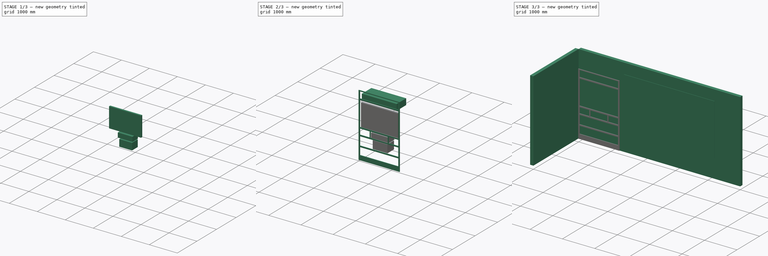
[diagram: build sequence overview — one tinted view per stage of 3, left to right]
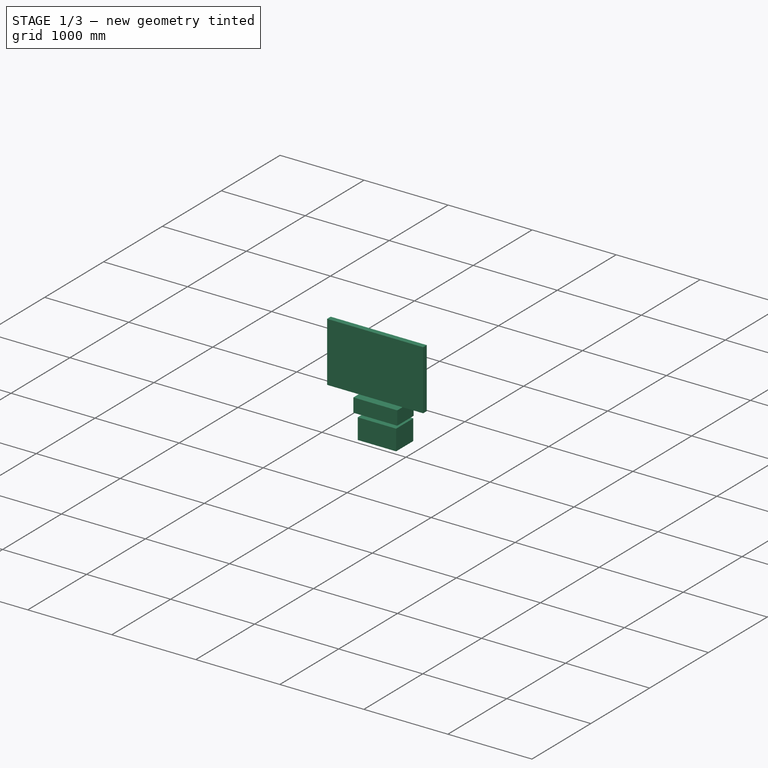
[diagram: stage 1 of 3 — iso view after this stage's code; geometry added in this stage tinted green]
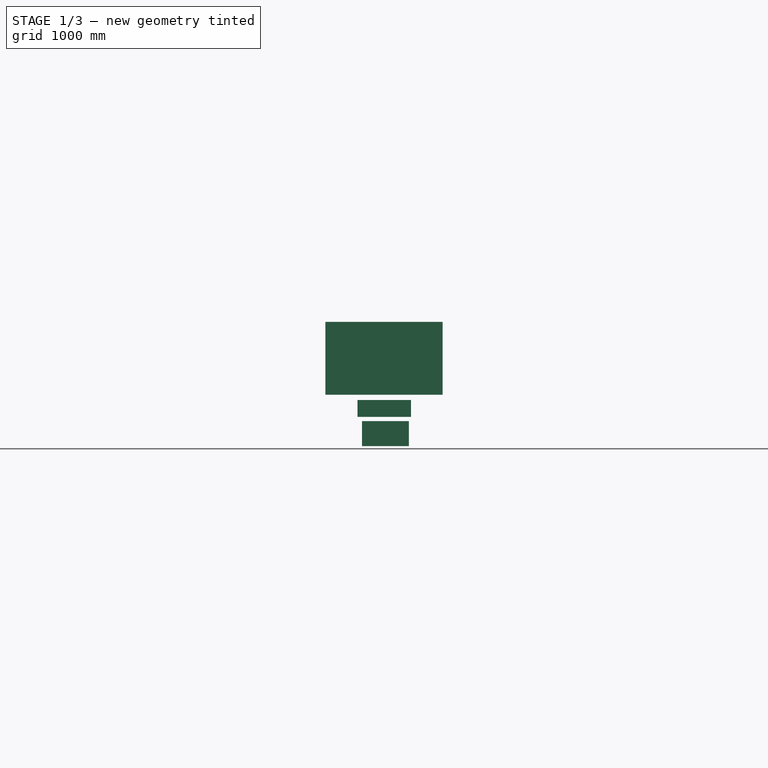
[diagram: stage 1 of 3 — front view after this stage's code; geometry added in this stage tinted green]
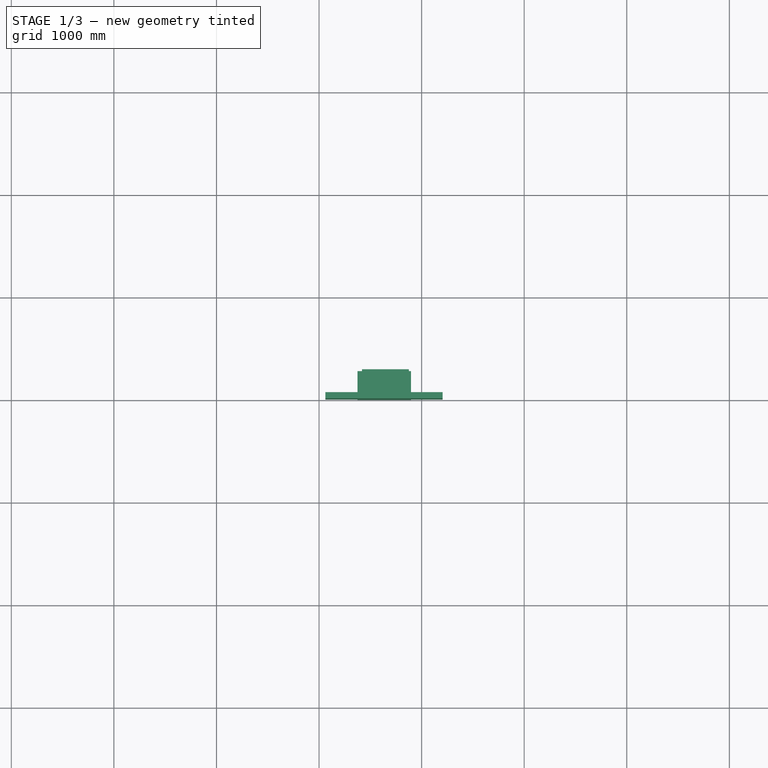
[diagram: stage 1 of 3 — top view after this stage's code; geometry added in this stage tinted green]
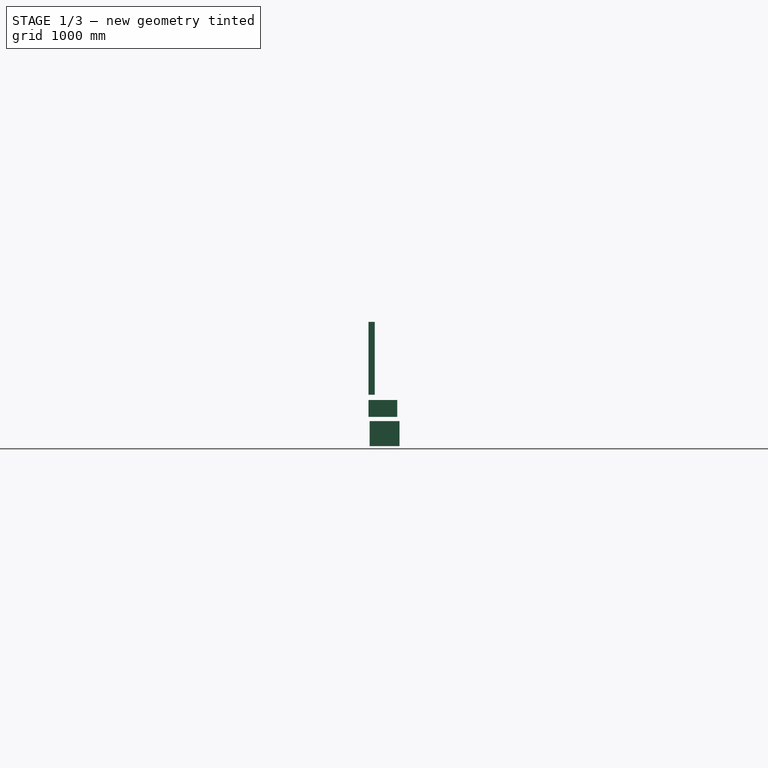
[diagram: stage 1 of 3 — right view after this stage's code; geometry added in this stage tinted green]
FCSTD DOCUMENT  (FreeCAD 0.14R3677 (Git))
Label: stereo stand
License: CC-BY 3.0
LicenseURL: http://creativecommons.org/licenses/by/3.0/
objects: Part::Box×6, Sketcher::SketchObject×2, PartDesign::Pad×1, Part::FeaturePython×1, App::DocumentObjectGroup×1, App::MeasureDistance×1
note: 12 computed .brp shape members not serialized (recipe doc carries the construction recipe); baked Part::Feature solids carry a one-line shape summary decoded from their .brp

FEATURE [Part::Box] Box001  label="tv"
  Height = 710.184
  Length = 1143
  Placement = pos=(61.69,0,906.21) rot=(0,0,1;0rad)
  Width = 60.8
FEATURE [Part::Box] Box002  label="speaker-center"
  Height = 165.1
  Length = 521.208
  Placement = pos=(374.75,0,689.77) rot=(0,0,1;0rad)
  Width = 279.4
FEATURE [Part::Box] Box003  label="radio"
  Height = 243.84
  Length = 457.2
  Placement = pos=(419,10,405) rot=(0,0,1;0rad)
  Width = 291.4
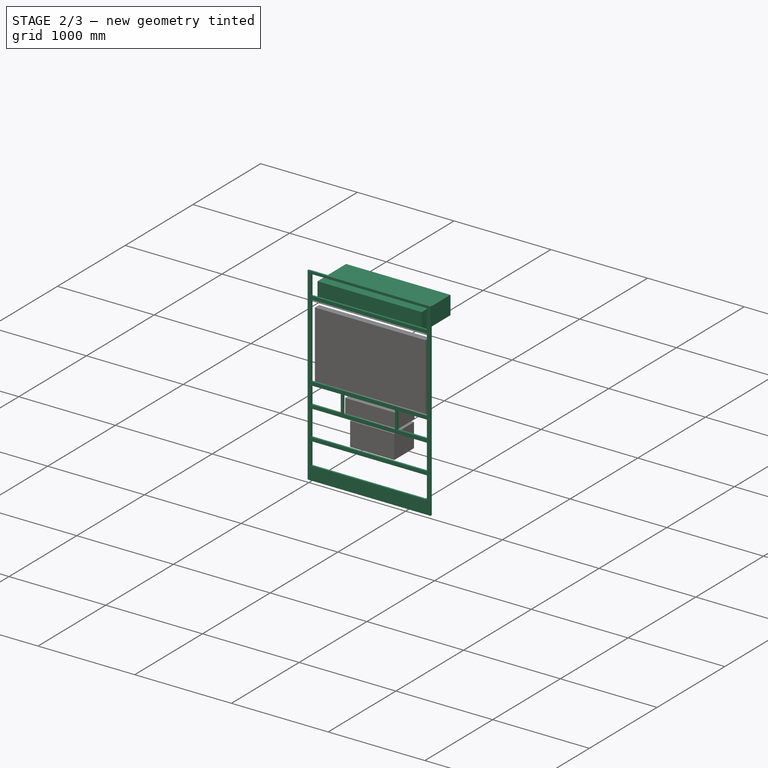
[diagram: stage 2 of 3 — iso view after this stage's code; geometry added in this stage tinted green]
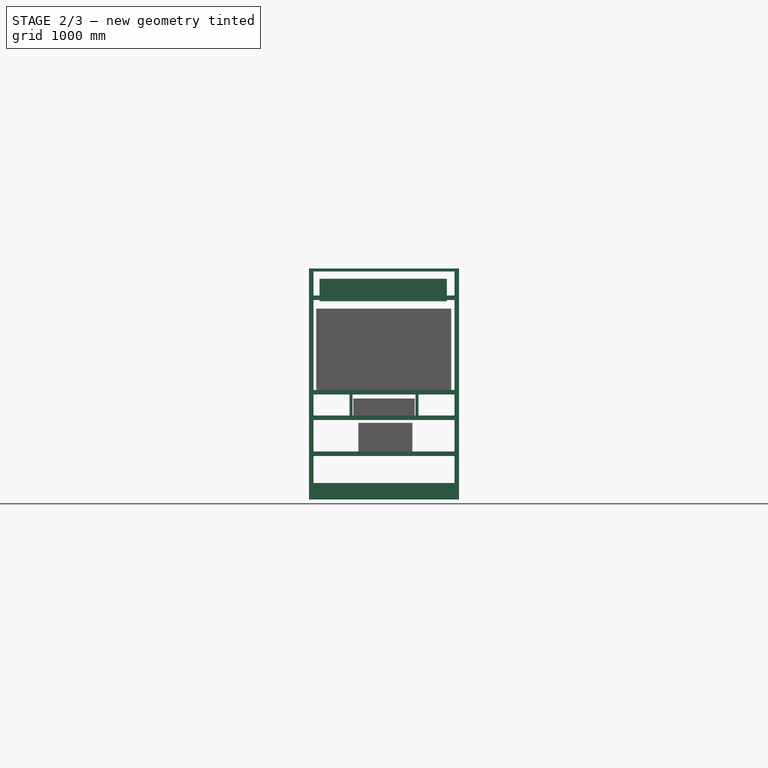
[diagram: stage 2 of 3 — front view after this stage's code; geometry added in this stage tinted green]
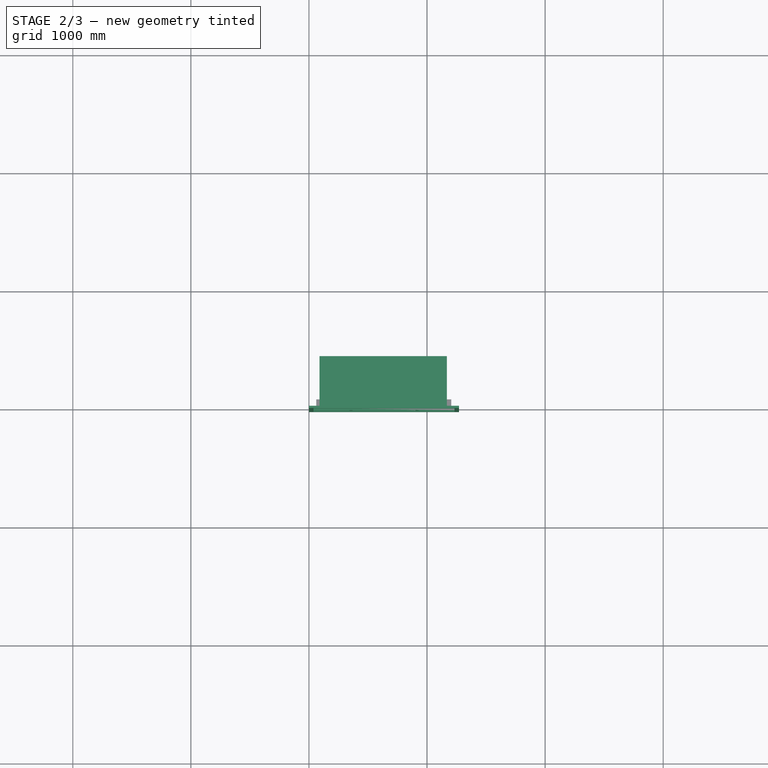
[diagram: stage 2 of 3 — top view after this stage's code; geometry added in this stage tinted green]
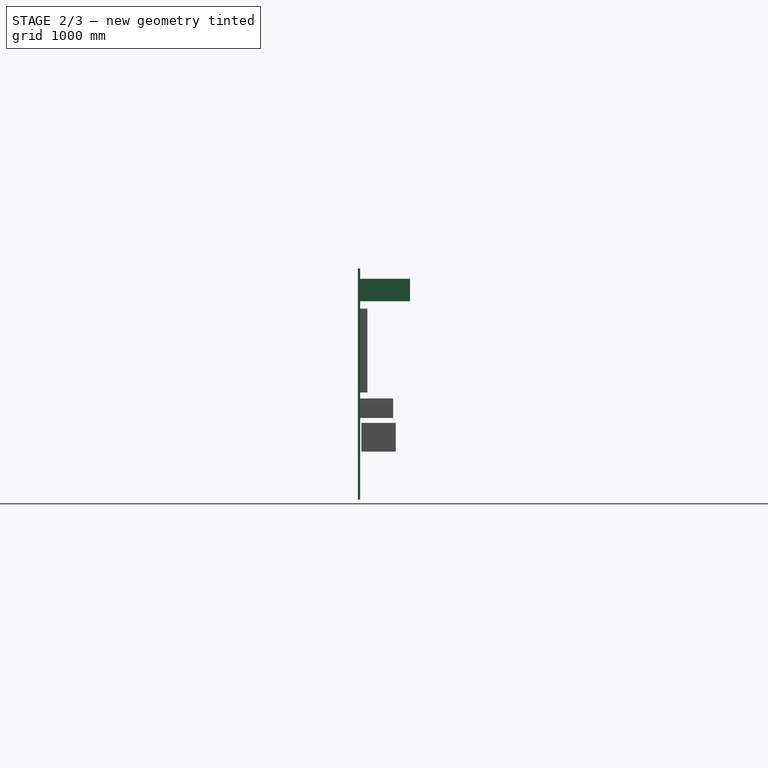
[diagram: stage 2 of 3 — right view after this stage's code; geometry added in this stage tinted green]
FEATURE [Sketcher::SketchObject] Sketch
  Placement = pos=(0,0,0) rot=(1,0,0;1.5708rad)
  sketch-geometry (34):
    g0: LineSegment StartX=0 StartY=0 StartZ=0 EndX=1271.02 EndY=0 EndZ=0
    g1: LineSegment StartX=1271.02 StartY=0 StartZ=0 EndX=1271.02 EndY=1955.8 EndZ=0
    g2: LineSegment StartX=1271.02 StartY=1955.8 StartZ=0 EndX=0 EndY=1955.8 EndZ=0
    g3: LineSegment StartX=0 StartY=1955.8 StartZ=0 EndX=0 EndY=0 EndZ=0
    g4: LineSegment StartX=38.1 StartY=368.3 StartZ=0 EndX=1232.92 EndY=368.3 EndZ=0
    g5: LineSegment StartX=1232.92 StartY=368.3 StartZ=0 EndX=1232.92 EndY=139.7 EndZ=0
    g6: LineSegment StartX=1232.92 StartY=139.7 StartZ=0 EndX=38.1 EndY=139.7 EndZ=0
    g7: LineSegment StartX=38.1 StartY=139.7 StartZ=0 EndX=38.1 EndY=368.3 EndZ=0
    g8: LineSegment StartX=38.1 StartY=673.1 StartZ=0 EndX=1232.92 EndY=673.1 EndZ=0
    g9: LineSegment StartX=1232.92 StartY=673.1 StartZ=0 EndX=1232.92 EndY=406.4 EndZ=0
    g10: LineSegment StartX=1232.92 StartY=406.4 StartZ=0 EndX=38.1 EndY=406.4 EndZ=0
    g11: LineSegment StartX=38.1 StartY=406.4 StartZ=0 EndX=38.1 EndY=673.1 EndZ=0
    g12: LineSegment StartX=38.1 StartY=889 StartZ=0 EndX=343.408 EndY=889 EndZ=0
    g13: LineSegment StartX=1232.92 StartY=889 StartZ=0 EndX=1232.92 EndY=711.2 EndZ=0
    g14: LineSegment StartX=1232.92 StartY=711.2 StartZ=0 EndX=927.608 EndY=711.2 EndZ=0
    g15: LineSegment StartX=38.1 StartY=711.2 StartZ=0 EndX=38.1 EndY=889 EndZ=0
    g16: LineSegment StartX=38.1 StartY=1689.1 StartZ=0 EndX=1232.92 EndY=1689.1 EndZ=0
    g17: LineSegment StartX=1232.92 StartY=1689.1 StartZ=0 EndX=1232.92 EndY=927.1 EndZ=0
    g18: LineSegment StartX=1232.92 StartY=927.1 StartZ=0 EndX=38.1 EndY=927.1 EndZ=0
    g19: LineSegment StartX=38.1 StartY=927.1 StartZ=0 EndX=38.1 EndY=1689.1 EndZ=0
    g20: LineSegment StartX=38.1 StartY=1930.4 StartZ=0 EndX=1232.92 EndY=1930.4 EndZ=0
    g21: LineSegment StartX=1232.92 StartY=1930.4 StartZ=0 EndX=1232.92 EndY=1727.2 EndZ=0
    g22: LineSegment StartX=1232.92 StartY=1727.2 StartZ=0 EndX=38.1 EndY=1727.2 EndZ=0
    g23: LineSegment StartX=38.1 StartY=1727.2 StartZ=0 EndX=38.1 EndY=1930.4 EndZ=0
    g24: LineSegment [constr] StartX=1232.92 StartY=1869.11 StartZ=0 EndX=1232.92 EndY=51.325 EndZ=0
    g25: LineSegment [constr] StartX=38.1 StartY=1892.17 StartZ=0 EndX=38.1 EndY=-203.2 EndZ=0
    g26: LineSegment StartX=368.808 StartY=889 StartZ=0 EndX=368.808 EndY=711.2 EndZ=0
    g27: LineSegment StartX=368.808 StartY=889 StartZ=0 EndX=902.208 EndY=889 EndZ=0
    g28: LineSegment StartX=902.208 StartY=889 StartZ=0 EndX=902.208 EndY=711.2 EndZ=0
    g29: LineSegment StartX=927.608 StartY=889 StartZ=0 EndX=927.608 EndY=711.2 EndZ=0
    g30: LineSegment StartX=927.608 StartY=889 StartZ=0 EndX=1232.92 EndY=889 EndZ=0
    g31: LineSegment StartX=902.208 StartY=711.2 StartZ=0 EndX=368.808 EndY=711.2 EndZ=0
    g32: LineSegment StartX=343.408 StartY=889 StartZ=0 EndX=343.408 EndY=711.2 EndZ=0
    g33: LineSegment StartX=343.408 StartY=711.2 StartZ=0 EndX=38.1 EndY=711.2 EndZ=0
  constraints (96):
    c: Coincident(g0,g1)
    c: Coincident(g1,g2)
    c: Coincident(g2,g3)
    c: Coincident(g3,g0)
    c: Horizontal(g0)
    c: Vertical(g1)
    c: Vertical(g3)
    c: Coincident(g4,g5)
    c: Coincident(g5,g6)
    c: Coincident(g6,g7)
    c: Coincident(g7,g4)
    c: Horizontal(g4)
    c: Horizontal(g6)
    c: Vertical(g5)
    c: Vertical(g7)
    c: Coincident(g8,g9)
    c: Coincident(g9,g10)
    c: Coincident(g10,g11)
    c: Coincident(g11,g8)
    c: Horizontal(g8)
    c: Horizontal(g10)
    c: Vertical(g9)
    c: Vertical(g11)
    c: Coincident(g30,g13)
    c: Coincident(g13,g14)
    c: Coincident(g33,g15)
    c: Coincident(g15,g12)
    c: Horizontal(g12)
    c: Horizontal(g14)
    c: Vertical(g13)
    c: Vertical(g15)
    c: Coincident(g16,g17)
    c: Coincident(g17,g18)
    c: Coincident(g18,g19)
    c: Coincident(g19,g16)
    c: Horizontal(g16)
    c: Horizontal(g18)
    c: Vertical(g17)
    c: Vertical(g19)
    c: Coincident(g20,g21)
    c: Coincident(g21,g22)
    c: Coincident(g22,g23)
    c: Coincident(g23,g20)
    c: Horizontal(g22)
    c: Vertical(g21)
    c: Vertical(g23)
    c: DistanceX(g0) = 1271.02
    c: Coincident(g0,g-1)
    c: Vertical(g24)
    c: PointOnObject(g20,g24)
    c: PointOnObject(g16,g24)
    c: PointOnObject(g30,g24)
    c: PointOnObject(g8,g24)
    c: PointOnObject(g4,g24)
    c: Distance(g0,g24) = 38.1
    c: DistanceY(g18,g16) = 762
    c: DistanceY(g16,g22) = 38.1
    c: DistanceY(g33,g12) = 177.8
    c: DistanceY(g12,g18) = 38.1
    c: DistanceY(g8,g33) = 38.1
    c: DistanceY(g8,g10) = -266.7
    c: DistanceY(g4,g10) = 38.1
    c: DistanceY(g6,g4) = 228.6
    c: DistanceY(g22,g20) = 203.2
    c: Distance(g6,g0) = 139.7
    c: Vertical(g25)
    c: PointOnObject(g18,g25)
    c: PointOnObject(g33,g25)
    c: PointOnObject(g10,g25)
    c: PointOnObject(g4,g25)
    c: Distance(g6,g3) = 38.1
    c: Vertical(g26)
    c: PointOnObject(g26,g14)
    c: Tangent(g12,g27)
    c: Vertical(g28)
    c: Vertical(g29)
    c: Coincident(g27,g28)
    c: Coincident(g30,g29)
    c: Tangent(g27,g30)
    c: Coincident(g14,g29)
    c: Coincident(g31,g28)
    c: Tangent(g14,g31)
    c: Coincident(g32,g12)
    c: Vertical(g32)
    c: PointOnObject(g31,g26)
    c: Coincident(g33,g32)
    c: Tangent(g31,g33)
    c: Coincident(g26,g27)
    c: DistanceX(g12,g26) = 25.4
    c: DistanceX(g29,g27) = -25.4
    c: Equal(g12,g30)
    c: Equal(g12,g30)
    c: Horizontal(g20)
    c: Horizontal(g2)
    c: DistanceY(g20,g2) = 25.4
    c: DistanceX(g27,g26) = -533.4
FEATURE [PartDesign::Pad] Pad
  Length = 19.05
  Length2 = 39.9999
  Placement = pos=(0,0,0) rot=(1,0,0;1.5708rad)
  Sketch = -> Sketch
  Type = 0
FEATURE [Part::Box] Box  label="speaker-main"
  Height = 190.5
  Length = 1078.99
  Placement = pos=(89.11,0,1678.63) rot=(0,0,1;0rad)
  Width = 422.4
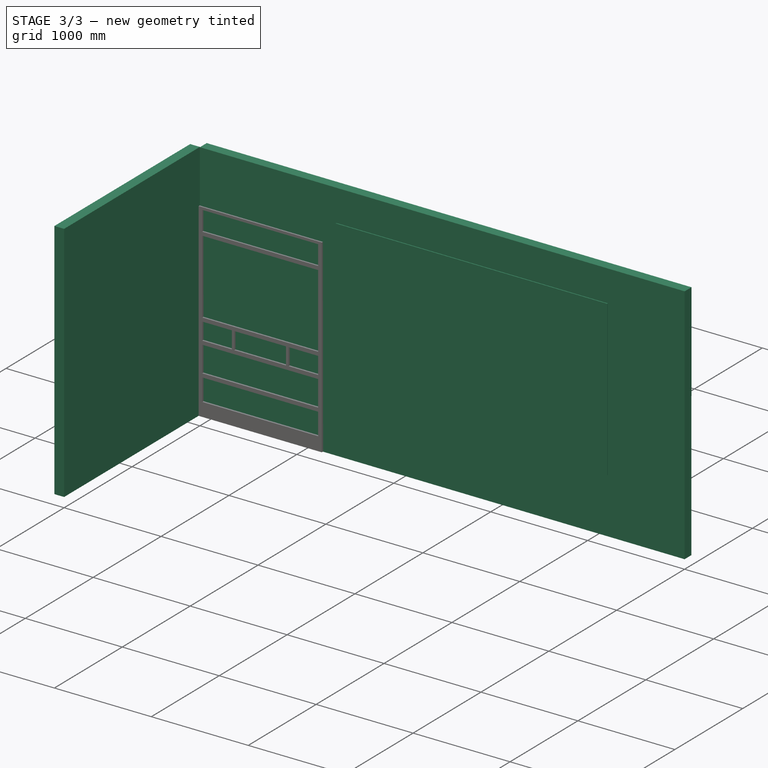
[diagram: stage 3 of 3 — iso view after this stage's code; geometry added in this stage tinted green]
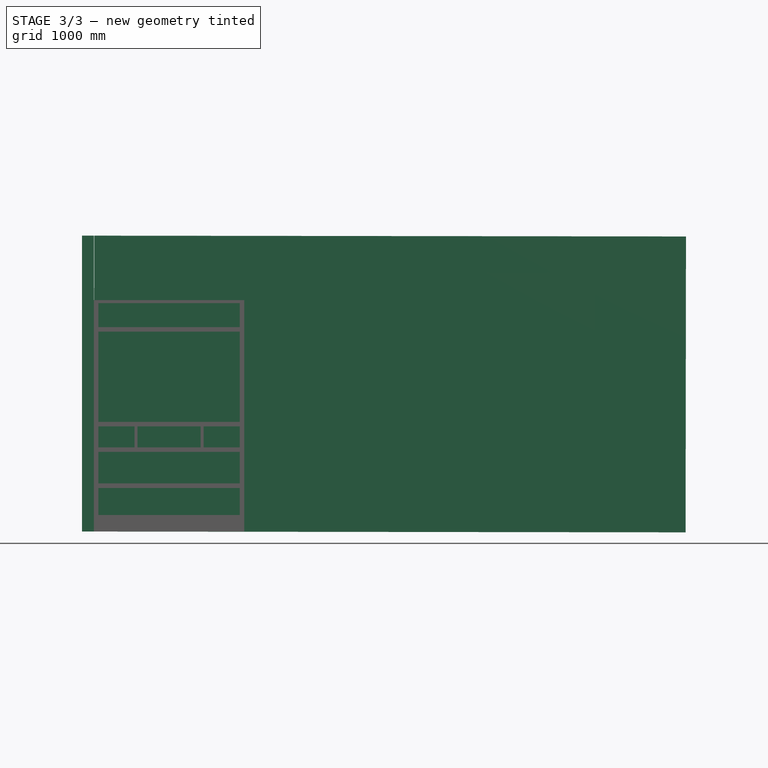
[diagram: stage 3 of 3 — front view after this stage's code; geometry added in this stage tinted green]
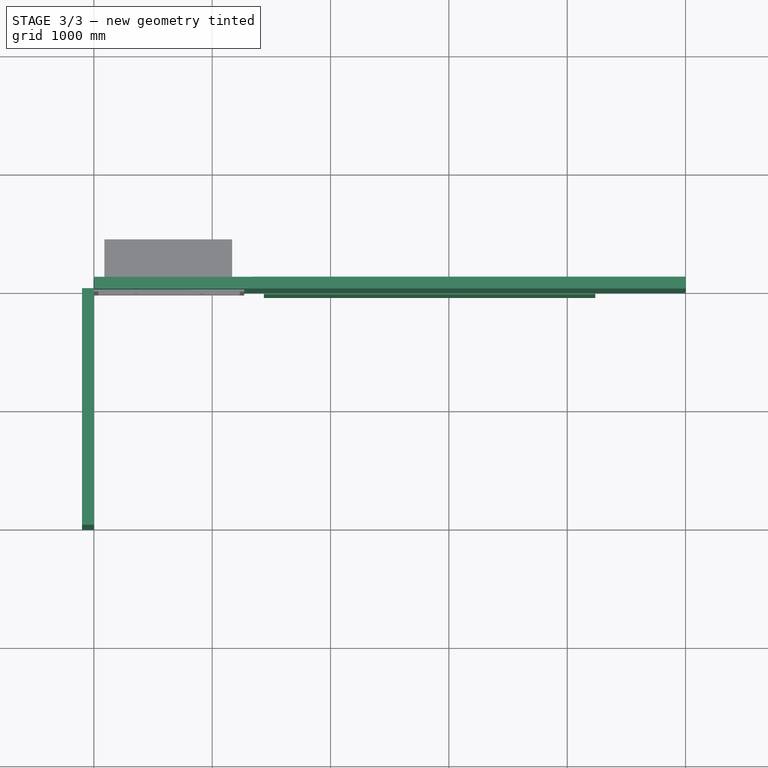
[diagram: stage 3 of 3 — top view after this stage's code; geometry added in this stage tinted green]
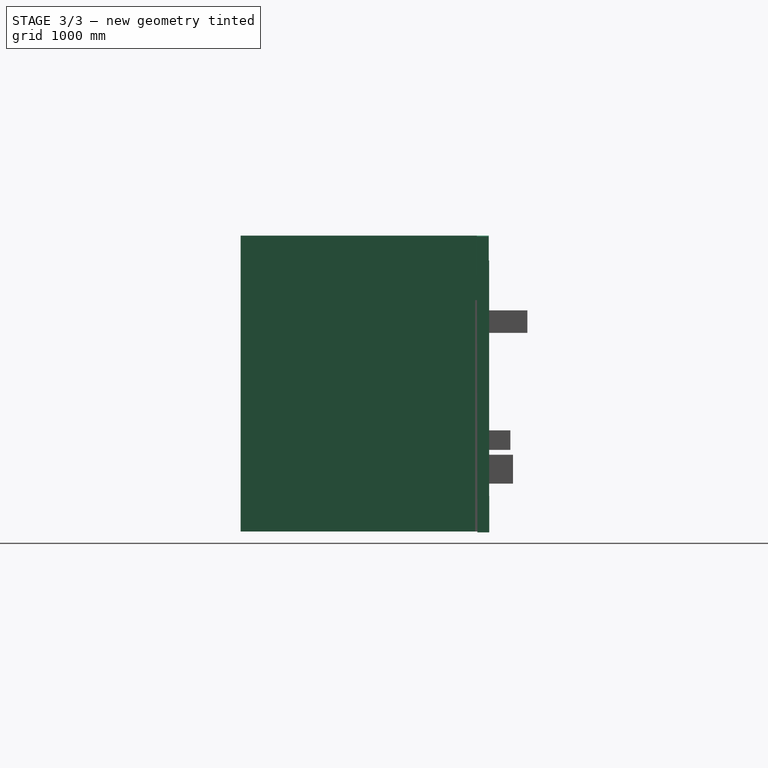
[diagram: stage 3 of 3 — right view after this stage's code; geometry added in this stage tinted green]
FEATURE [Part::Box] Box004  label="east wall"
  Height = 2500
  Length = 2000
  Placement = pos=(0,-2000,0) rot=(0,0,1;1.5708rad)
  Width = 100
FEATURE [Part::Box] Box005  label="south wall"
  Height = 2500
  Length = 5000
  Placement = pos=(0,0,0) rot=(0.757336,0.651211,0.048656;0.002128rad)
  Width = 100
FEATURE [Sketcher::SketchObject] Sketch001
  Placement = pos=(1944.62,0,3000) rot=(1,0,0;1.5708rad)
  sketch-geometry (8):
    g0: LineSegment StartX=0 StartY=0 StartZ=0 EndX=3000 EndY=0 EndZ=0
    g1: LineSegment StartX=3000 StartY=0 StartZ=0 EndX=3000 EndY=1800 EndZ=0
    g2: LineSegment StartX=3000 StartY=1800 StartZ=0 EndX=0 EndY=1800 EndZ=0
    g3: LineSegment StartX=0 StartY=1800 StartZ=0 EndX=0 EndY=0 EndZ=0
    g4: LineSegment StartX=100 StartY=100 StartZ=0 EndX=2900 EndY=100 EndZ=0
    g5: LineSegment StartX=2900 StartY=100 StartZ=0 EndX=2900 EndY=1700 EndZ=0
    g6: LineSegment StartX=2900 StartY=1700 StartZ=0 EndX=100 EndY=1700 EndZ=0
    g7: LineSegment StartX=100 StartY=1700 StartZ=0 EndX=100 EndY=100 EndZ=0
  constraints (23):
    c: Coincident(g0,g1)
    c: Coincident(g1,g2)
    c: Coincident(g2,g3)
    c: Coincident(g3,g0)
    c: Horizontal(g0)
    c: Horizontal(g2)
    c: Vertical(g1)
    c: Vertical(g3)
    c: Coincident(g4,g5)
    c: Coincident(g5,g6)
    c: Coincident(g6,g7)
    c: Coincident(g7,g4)
    c: Horizontal(g4)
    c: Horizontal(g6)
    c: Vertical(g5)
    c: Vertical(g7)
    c: DistanceY(g1) = 1800
    c: DistanceX(g0) = 3000
    c: DistanceY(g6,g2) = 100
    c: DistanceX(g2,g6) = 100
    c: DistanceX(g4,g0) = 100
    c: DistanceY(g0,g4) = 100
    c: Coincident(g0,g-1)
FEATURE [Part::FeaturePython] Window  # WARN: FeaturePython — macro-defined, semantics opaque (R4)
  Base = -> Sketch001
  Height = 1800
  HoleDepth = 0
  Normal = (0,1,0)
  Placement = pos=(-608,-100,-2510) rot=(0,0,1;0rad)
  Preset = 1
  Role = 0
  Width = 3000
  WindowParts = OuterFrame | Frame | Wire0,Wire1 | 100.0 | 100.0 | Glass | Glass panel | Wire1 | 10.0 | 50.0
FEATURE [App::DocumentObjectGroup] Group  label="face"
  Group = -> [Pad,Box,Box001,Box002,Box003]
FEATURE [App::MeasureDistance] Distance  label="Distance: 0.000"
  Distance = 0
  P1 = (1352.34,-9.78847,950.845)
  P2 = (1352.34,-9.78847,950.845)
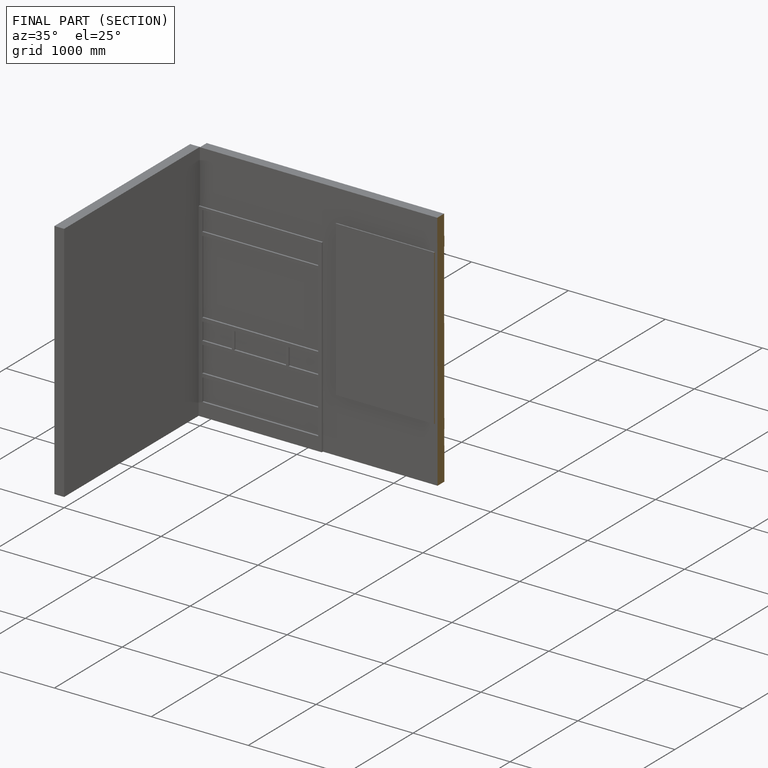
[diagram: finished part — half-section view (interior)]
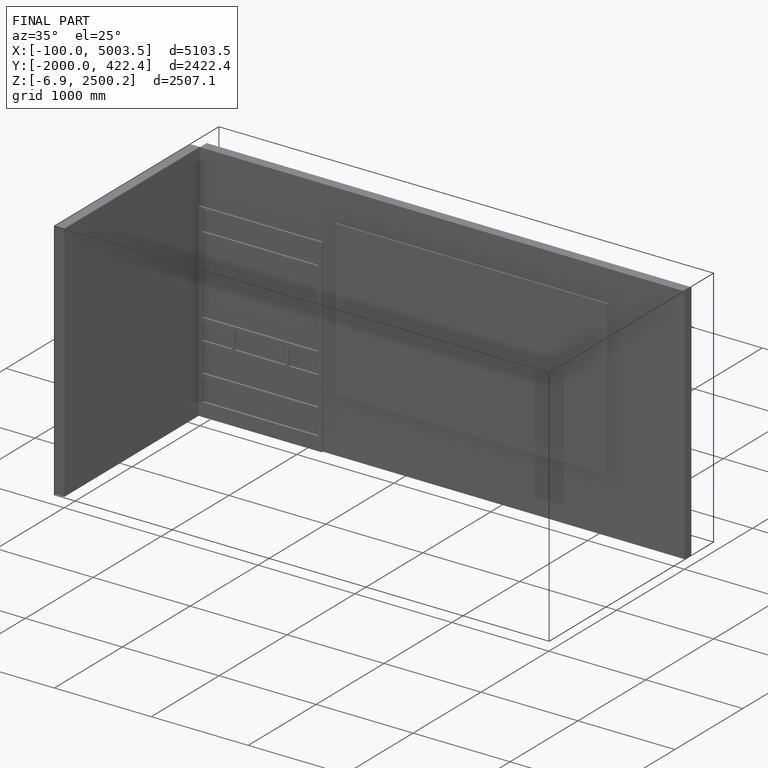
[diagram: finished part — iso view with bounding-box wireframe]
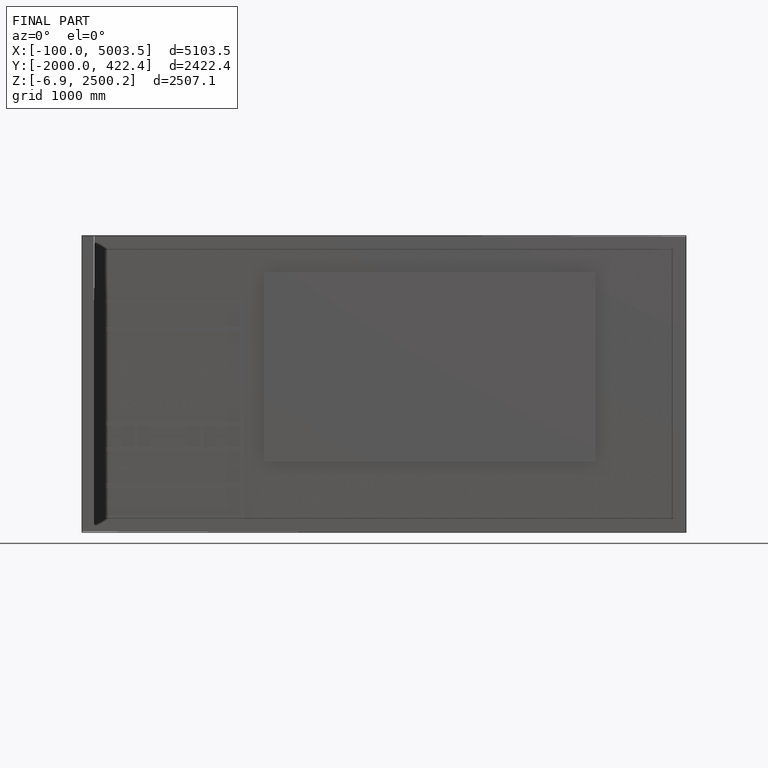
[diagram: finished part — front view with bounding-box wireframe]
